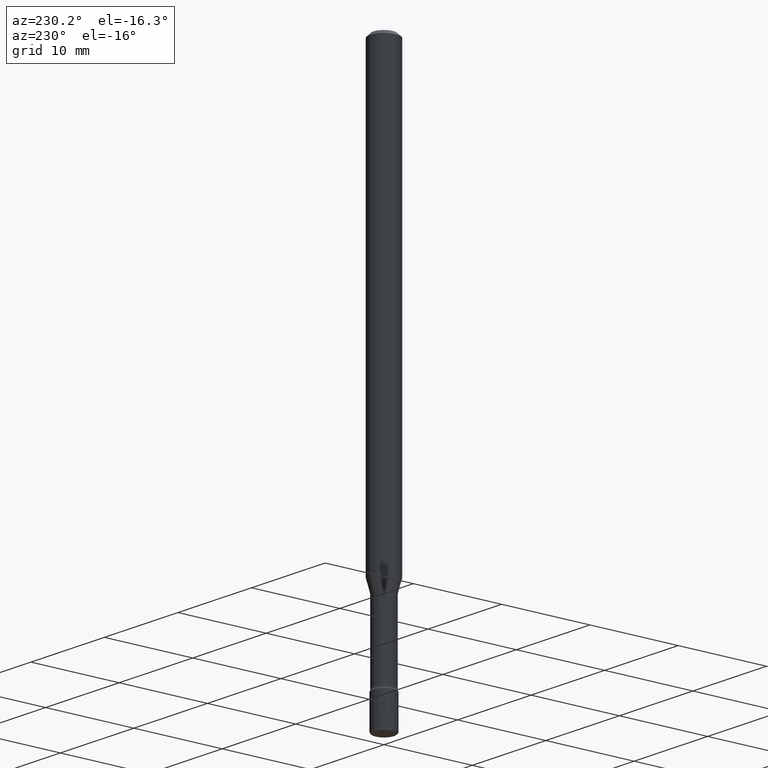
[diagram: clean part render]
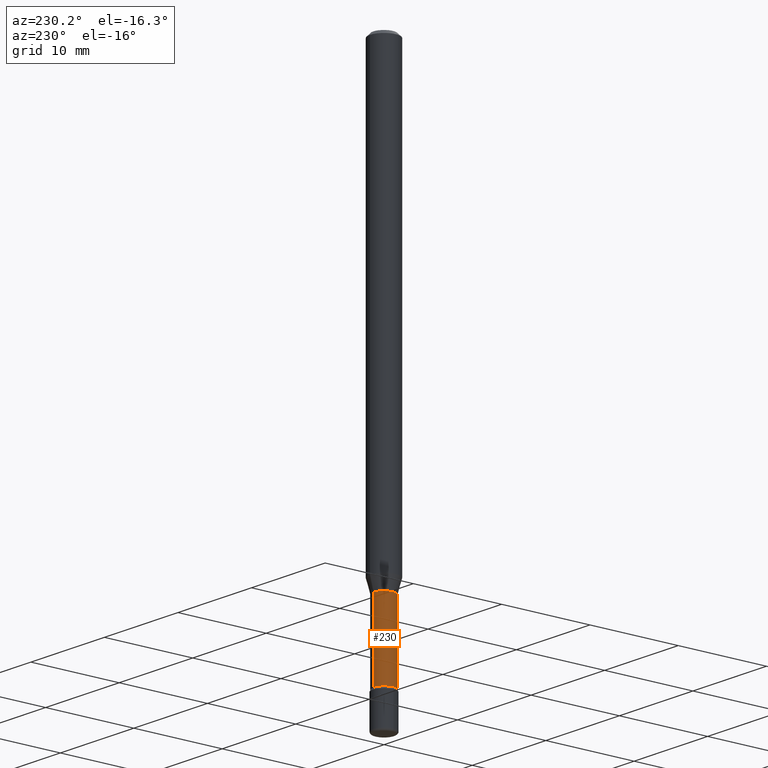
[diagram: same view with one face highlighted and labeled with its STEP entity id]
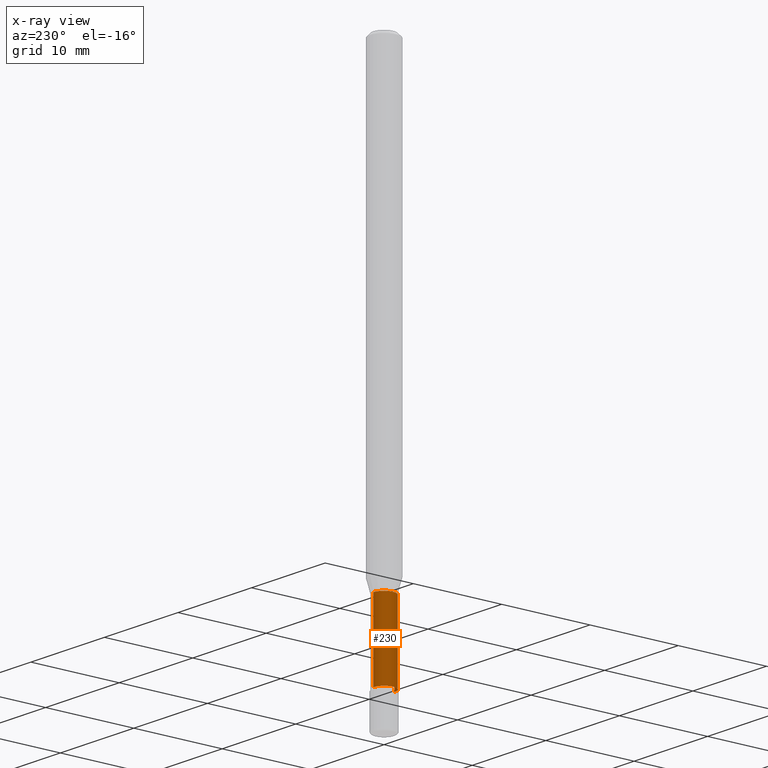
[diagram: x-ray of the same camera — body ghosted, the highlighted face saturated]
A machine part, auxiliary view. The second image highlights one B-rep face of the part: STEP entity #230.
The next image is the same camera in x-ray: the body ghosted, the highlighted face saturated — about 0% of this face is hidden behind the body in this view.
In plain terms, the highlighted cylindrical surface (edge-blend (fillet) strip) has radius 1.1938 mm, axis along (-0, 0, 1).
Its self-contained STEP definition (entity closure, byte-faithful):
#7 = CARTESIAN_POINT ( 'NONE',  ( 3.446132268437060393E-16, 0.04699999999999183303, -2.341000000000000192 ) ) ;
#20 = DIRECTION ( 'NONE',  ( -2.445541428082492260E-29, 3.491377340152750324E-15, 1.000000000000000000 ) ) ;
#26 = AXIS2_PLACEMENT_3D ( 'NONE', #90, #224, #405 ) ;
#28 = EDGE_CURVE ( 'NONE', #69, #393, #93, .T. ) ;
#40 = DIRECTION ( 'NONE',  ( -6.982962677686265922E-15, -1.000000000000000000, 5.812442539711197800E-15 ) ) ;
#44 = DIRECTION ( 'NONE',  ( -2.445541428082492260E-29, 3.491377340152750324E-15, 1.000000000000000000 ) ) ;
#47 = VECTOR ( 'NONE', #383, 39.37007874015748143 ) ;
#48 = DIRECTION ( 'NONE',  ( -2.445541428082492260E-29, 3.491377340152750324E-15, 1.000000000000000000 ) ) ;
#56 = CYLINDRICAL_SURFACE ( 'NONE', #134, 0.04700000000000000705 ) ;
#60 = DIRECTION ( 'NONE',  ( -6.982962677686265922E-15, -1.000000000000000000, 3.491377340152749929E-15 ) ) ;
#69 = VERTEX_POINT ( 'NONE', #264 ) ;
#90 = CARTESIAN_POINT ( 'NONE',  ( 4.895912280719391732E-29, -6.989649408508267577E-15, -2.001974787463811190 ) ) ;
#91 = EDGE_CURVE ( 'NONE', #297, #393, #384, .T. ) ;
#93 = LINE ( 'NONE', #444, #460 ) ;
#115 = LINE ( 'NONE', #379, #47 ) ;
#134 = AXIS2_PLACEMENT_3D ( 'NONE', #241, #20, #60 ) ;
#170 = ORIENTED_EDGE ( 'NONE', *, *, #350, .F. ) ;
#204 = CARTESIAN_POINT ( 'NONE',  ( 3.339550858073042806E-16, 0.04699999999999300571, -2.001974787463811190 ) ) ;
#224 = DIRECTION ( 'NONE',  ( -2.445541428082492260E-29, 3.491377340152750324E-15, 1.000000000000000000 ) ) ;
#230 = ADVANCED_FACE ( 'NONE', ( #464 ), #56, .T. ) ;
#241 = CARTESIAN_POINT ( 'NONE',  ( -1.169113584055446105E-44, 1.669184350826100908E-30, 4.780733988912460139E-16 ) ) ;
#264 = CARTESIAN_POINT ( 'NONE',  ( -3.281992458511972621E-16, -0.04700000000000817413, -2.340999999999999748 ) ) ;
#297 = VERTEX_POINT ( 'NONE', #204 ) ;
#302 = ORIENTED_EDGE ( 'NONE', *, *, #28, .T. ) ;
#326 = ORIENTED_EDGE ( 'NONE', *, *, #91, .F. ) ;
#339 = CARTESIAN_POINT ( 'NONE',  ( -3.281992458512055452E-16, -0.04700000000000698758, -2.001974787463810745 ) ) ;
#350 = EDGE_CURVE ( 'NONE', #557, #297, #115, .T. ) ;
#379 = CARTESIAN_POINT ( 'NONE',  ( 3.339550858072470388E-16, 0.04700000000000000705, 3.139786639040668225E-16 ) ) ;
#383 = DIRECTION ( 'NONE',  ( -2.445541428082492260E-29, 3.491377340152750324E-15, 1.000000000000000000 ) ) ;
#384 = CIRCLE ( 'NONE', #26, 0.04699999999999999317 ) ;
#393 = VERTEX_POINT ( 'NONE', #339 ) ;
#405 = DIRECTION ( 'NONE',  ( -6.982962677686266711E-15, -1.000000000000000000, 5.812442539711199378E-15 ) ) ;
#444 = CARTESIAN_POINT ( 'NONE',  ( -3.281992458512545531E-16, -0.04700000000000000705, 6.421681338784253533E-16 ) ) ;
#447 = ORIENTED_EDGE ( 'NONE', *, *, #456, .T. ) ;
#456 = EDGE_CURVE ( 'NONE', #557, #69, #461, .T. ) ;
#460 = VECTOR ( 'NONE', #48, 39.37007874015748143 ) ;
#461 = CIRCLE ( 'NONE', #569, 0.04700000000000000705 ) ;
#464 = FACE_OUTER_BOUND ( 'NONE', #533, .T. ) ;
#485 = CARTESIAN_POINT ( 'NONE',  ( 5.725012483141114982E-29, -8.173314353297587961E-15, -2.341000000000000192 ) ) ;
#533 = EDGE_LOOP ( 'NONE', ( #170, #447, #302, #326 ) ) ;
#557 = VERTEX_POINT ( 'NONE', #7 ) ;
#569 = AXIS2_PLACEMENT_3D ( 'NONE', #485, #44, #40 ) ;